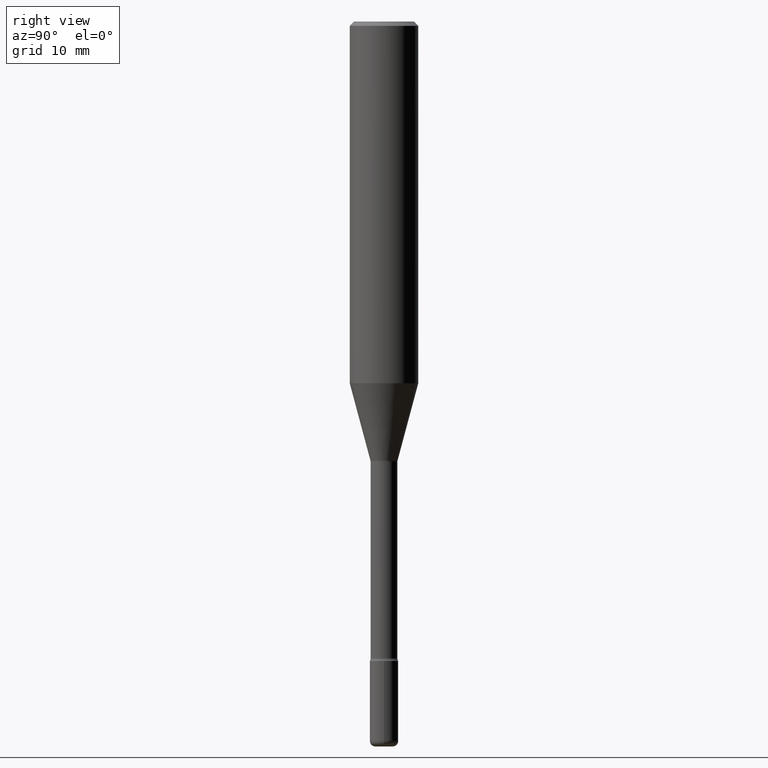
[diagram: clean part render]
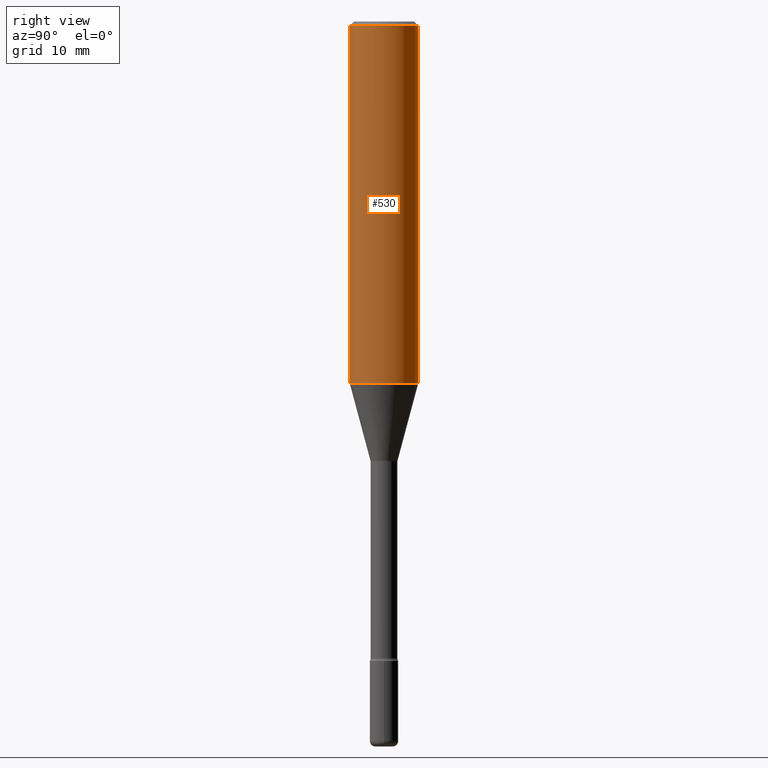
[diagram: same view with one face highlighted and labeled with its STEP entity id]
A machine part, right view. The second image highlights one B-rep face of the part: STEP entity #530.
In plain terms, the highlighted cylindrical surface (edge-blend (fillet) strip) has radius 2.9997 mm, axis along (-0, 0, 1).
Its self-contained STEP definition (entity closure, byte-faithful):
#5 = CARTESIAN_POINT ( 'NONE',  ( -8.246878922347479668E-16, -0.1180999999999999966, 8.903746777448015409E-16 ) ) ;
#12 = FACE_OUTER_BOUND ( 'NONE', #288, .T. ) ;
#41 = CARTESIAN_POINT ( 'NONE',  ( 8.391509709326781971E-16, 0.1180999999999999966, 6.577212003769061022E-17 ) ) ;
#51 = VERTEX_POINT ( 'NONE', #193 ) ;
#58 = CARTESIAN_POINT ( 'NONE',  ( -8.246878922347475723E-16, -0.1181000000000000522, -0.01499999999999961607 ) ) ;
#95 = CARTESIAN_POINT ( 'NONE',  ( 8.391509709327088641E-16, 0.1180999999999999411, -0.01500000000000044006 ) ) ;
#102 = DIRECTION ( 'NONE',  ( -2.445721087227316555E-29, 3.491120058031798950E-15, 1.000000000000000000 ) ) ;
#109 = DIRECTION ( 'NONE',  ( -6.982962677686265922E-15, -1.000000000000000000, 3.491120058031799739E-15 ) ) ;
#128 = DIRECTION ( 'NONE',  ( -2.445721087227316555E-29, 3.491120058031798950E-15, 1.000000000000000000 ) ) ;
#184 = VERTEX_POINT ( 'NONE', #513 ) ;
#191 = AXIS2_PLACEMENT_3D ( 'NONE', #319, #495, #109 ) ;
#193 = CARTESIAN_POINT ( 'NONE',  ( 8.391509709327088641E-16, 0.1180999999999956807, -1.247552149476177430 ) ) ;
#206 = DIRECTION ( 'NONE',  ( -6.982962677686265922E-15, -1.000000000000000000, 4.626330217890369336E-15 ) ) ;
#212 = VECTOR ( 'NONE', #128, 39.37007874015748143 ) ;
#219 = LINE ( 'NONE', #5, #405 ) ;
#221 = DIRECTION ( 'NONE',  ( -6.982962677686265922E-15, -1.000000000000000000, 3.487819265831411744E-15 ) ) ;
#252 = AXIS2_PLACEMENT_3D ( 'NONE', #311, #102, #221 ) ;
#258 = LINE ( 'NONE', #41, #212 ) ;
#262 = EDGE_CURVE ( 'NONE', #184, #51, #535, .T. ) ;
#288 = EDGE_LOOP ( 'NONE', ( #446, #401, #483, #318 ) ) ;
#290 = EDGE_CURVE ( 'NONE', #51, #444, #258, .T. ) ;
#292 = AXIS2_PLACEMENT_3D ( 'NONE', #566, #518, #206 ) ;
#311 = CARTESIAN_POINT ( 'NONE',  ( 3.668581630840980928E-31, -5.236680087047708706E-17, -0.01500000000000002720 ) ) ;
#318 = ORIENTED_EDGE ( 'NONE', *, *, #465, .F. ) ;
#319 = CARTESIAN_POINT ( 'NONE',  ( -1.169113584055446105E-44, 1.669184350826100908E-30, 4.780733988912460139E-16 ) ) ;
#399 = EDGE_CURVE ( 'NONE', #496, #444, #549, .T. ) ;
#401 = ORIENTED_EDGE ( 'NONE', *, *, #290, .T. ) ;
#405 = VECTOR ( 'NONE', #487, 39.37007874015748143 ) ;
#444 = VERTEX_POINT ( 'NONE', #95 ) ;
#446 = ORIENTED_EDGE ( 'NONE', *, *, #262, .T. ) ;
#465 = EDGE_CURVE ( 'NONE', #184, #496, #219, .T. ) ;
#483 = ORIENTED_EDGE ( 'NONE', *, *, #399, .F. ) ;
#487 = DIRECTION ( 'NONE',  ( -2.445721087227316555E-29, 3.491120058031798950E-15, 1.000000000000000000 ) ) ;
#495 = DIRECTION ( 'NONE',  ( -2.445721087227316555E-29, 3.491120058031798950E-15, 1.000000000000000000 ) ) ;
#496 = VERTEX_POINT ( 'NONE', #58 ) ;
#513 = CARTESIAN_POINT ( 'NONE',  ( -8.246878922347172998E-16, -0.1181000000000043126, -1.247552149476176320 ) ) ;
#518 = DIRECTION ( 'NONE',  ( -2.445721087227316555E-29, 3.491120058031798950E-15, 1.000000000000000000 ) ) ;
#530 = ADVANCED_FACE ( 'NONE', ( #12 ), #541, .T. ) ;
#535 = CIRCLE ( 'NONE', #292, 0.1180999999999999966 ) ;
#541 = CYLINDRICAL_SURFACE ( 'NONE', #191, 0.1180999999999999966 ) ;
#549 = CIRCLE ( 'NONE', #252, 0.1180999999999999966 ) ;
#566 = CARTESIAN_POINT ( 'NONE',  ( 3.051164599389650582E-29, -4.355354332476965725E-15, -1.247552149476176764 ) ) ;